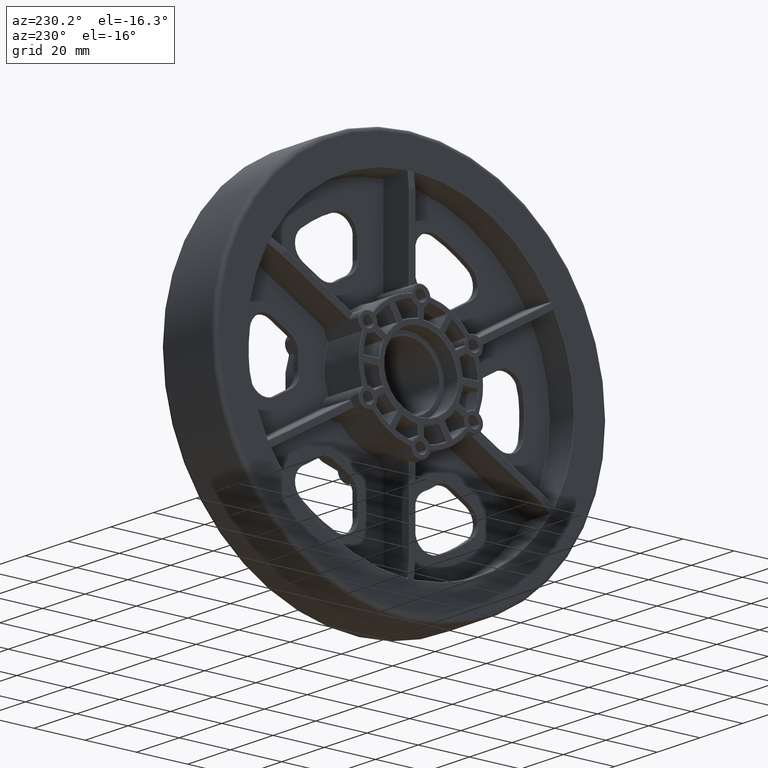
[diagram: clean part render]
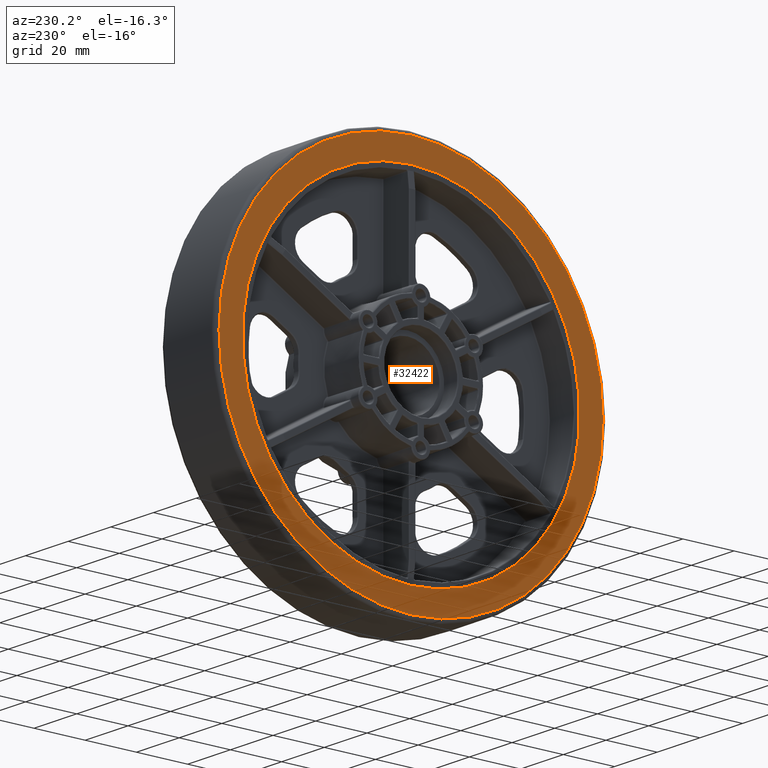
[diagram: same view with one face highlighted and labeled with its STEP entity id]
A machine part, auxiliary view. The second image highlights one B-rep face of the part: STEP entity #32422.
In plain terms, the highlighted planar face has unit normal (-1, 0, 0).
Its self-contained STEP definition (entity closure, byte-faithful):
#1647 = EDGE_LOOP ( 'NONE', ( #52065, #12206 ) ) ;
#2068 = PLANE ( 'NONE',  #36702 ) ;
#3835 = AXIS2_PLACEMENT_3D ( 'NONE', #34740, #10396, #38769 ) ;
#4656 = CIRCLE ( 'NONE', #39413, 2.952499999999999236 ) ;
#5630 = ORIENTED_EDGE ( 'NONE', *, *, #37535, .F. ) ;
#5867 = FACE_OUTER_BOUND ( 'NONE', #1647, .T. ) ;
#7890 = VERTEX_POINT ( 'NONE', #31764 ) ;
#10396 = DIRECTION ( 'NONE',  ( 0.0000000000000000000, 0.0000000000000000000, 1.000000000000000000 ) ) ;
#11560 = DIRECTION ( 'NONE',  ( 0.0000000000000000000, 0.0000000000000000000, 1.000000000000000000 ) ) ;
#11885 = EDGE_CURVE ( 'NONE', #20269, #7890, #4656, .T. ) ;
#12206 = ORIENTED_EDGE ( 'NONE', *, *, #29204, .T. ) ;
#13955 = DIRECTION ( 'NONE',  ( 0.0000000000000000000, 0.0000000000000000000, 1.000000000000000000 ) ) ;
#14142 = DIRECTION ( 'NONE',  ( 0.0000000000000000000, 0.0000000000000000000, 1.000000000000000000 ) ) ;
#14491 = CARTESIAN_POINT ( 'NONE',  ( 0.0000000000000000000, 0.0000000000000000000, 0.5000000000000000000 ) ) ;
#15508 = EDGE_LOOP ( 'NONE', ( #5630, #25400 ) ) ;
#18581 = DIRECTION ( 'NONE',  ( 0.0000000000000000000, 0.0000000000000000000, 1.000000000000000000 ) ) ;
#20224 = CARTESIAN_POINT ( 'NONE',  ( 2.952499999999999236, 0.0000000000000000000, 0.5000000000000000000 ) ) ;
#20269 = VERTEX_POINT ( 'NONE', #20224 ) ;
#21522 = CIRCLE ( 'NONE', #38616, 2.591000000000000192 ) ;
#25400 = ORIENTED_EDGE ( 'NONE', *, *, #28269, .F. ) ;
#25461 = VERTEX_POINT ( 'NONE', #45779 ) ;
#26684 = CIRCLE ( 'NONE', #3835, 2.591000000000000192 ) ;
#27063 = AXIS2_PLACEMENT_3D ( 'NONE', #35908, #11560, #39951 ) ;
#28269 = EDGE_CURVE ( 'NONE', #25461, #41673, #26684, .T. ) ;
#29204 = EDGE_CURVE ( 'NONE', #7890, #20269, #47480, .T. ) ;
#31647 = CARTESIAN_POINT ( 'NONE',  ( -2.591000000000000192, 0.0000000000000000000, 0.5000000000000000000 ) ) ;
#31764 = CARTESIAN_POINT ( 'NONE',  ( -2.952499999999999236, 3.654039886955913789E-16, 0.5000000000000000000 ) ) ;
#32422 = ADVANCED_FACE ( 'NONE', ( #5867, #47722 ), #2068, .T. ) ;
#34740 = CARTESIAN_POINT ( 'NONE',  ( 0.0000000000000000000, 0.0000000000000000000, 0.5000000000000000000 ) ) ;
#35908 = CARTESIAN_POINT ( 'NONE',  ( 0.0000000000000000000, 0.0000000000000000000, 0.5000000000000000000 ) ) ;
#36702 = AXIS2_PLACEMENT_3D ( 'NONE', #14491, #18581, #46912 ) ;
#37535 = EDGE_CURVE ( 'NONE', #41673, #25461, #21522, .T. ) ;
#38259 = CARTESIAN_POINT ( 'NONE',  ( 0.0000000000000000000, 0.0000000000000000000, 0.5000000000000000000 ) ) ;
#38439 = CARTESIAN_POINT ( 'NONE',  ( 0.0000000000000000000, 0.0000000000000000000, 0.5000000000000000000 ) ) ;
#38616 = AXIS2_PLACEMENT_3D ( 'NONE', #38439, #14142, #42498 ) ;
#38769 = DIRECTION ( 'NONE',  ( 1.000000000000000000, 0.0000000000000000000, 0.0000000000000000000 ) ) ;
#39413 = AXIS2_PLACEMENT_3D ( 'NONE', #38259, #13955, #42301 ) ;
#39951 = DIRECTION ( 'NONE',  ( 1.000000000000000000, 0.0000000000000000000, 0.0000000000000000000 ) ) ;
#41673 = VERTEX_POINT ( 'NONE', #31647 ) ;
#42301 = DIRECTION ( 'NONE',  ( 1.000000000000000000, 0.0000000000000000000, 0.0000000000000000000 ) ) ;
#42498 = DIRECTION ( 'NONE',  ( 1.000000000000000000, 0.0000000000000000000, 0.0000000000000000000 ) ) ;
#45779 = CARTESIAN_POINT ( 'NONE',  ( 2.591000000000000192, 3.173059856590792406E-16, 0.5000000000000000000 ) ) ;
#46912 = DIRECTION ( 'NONE',  ( 1.000000000000000000, 0.0000000000000000000, -0.0000000000000000000 ) ) ;
#47480 = CIRCLE ( 'NONE', #27063, 2.952499999999999236 ) ;
#47722 = FACE_BOUND ( 'NONE', #15508, .T. ) ;
#52065 = ORIENTED_EDGE ( 'NONE', *, *, #11885, .T. ) ;